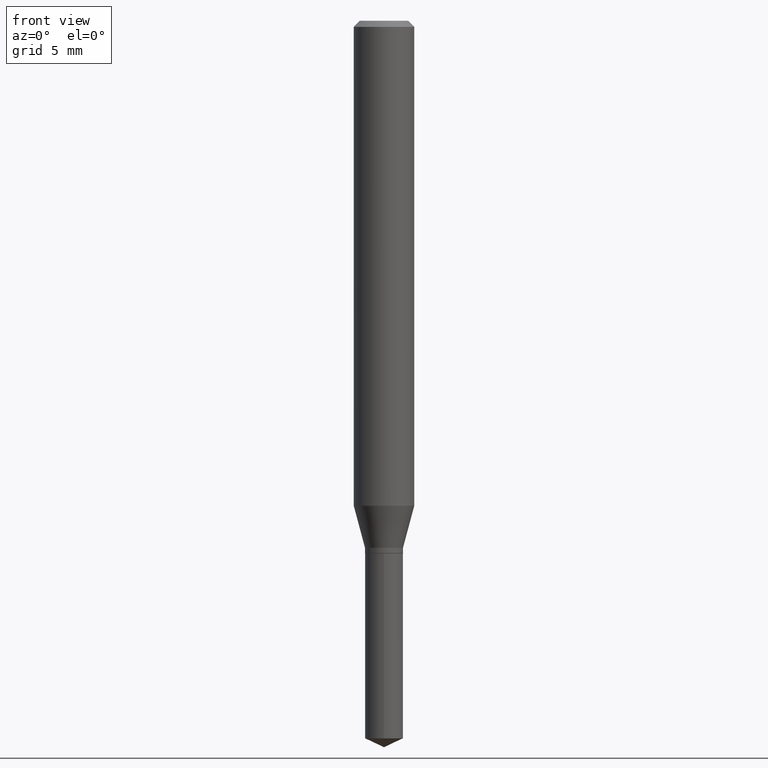
[diagram: clean part render]
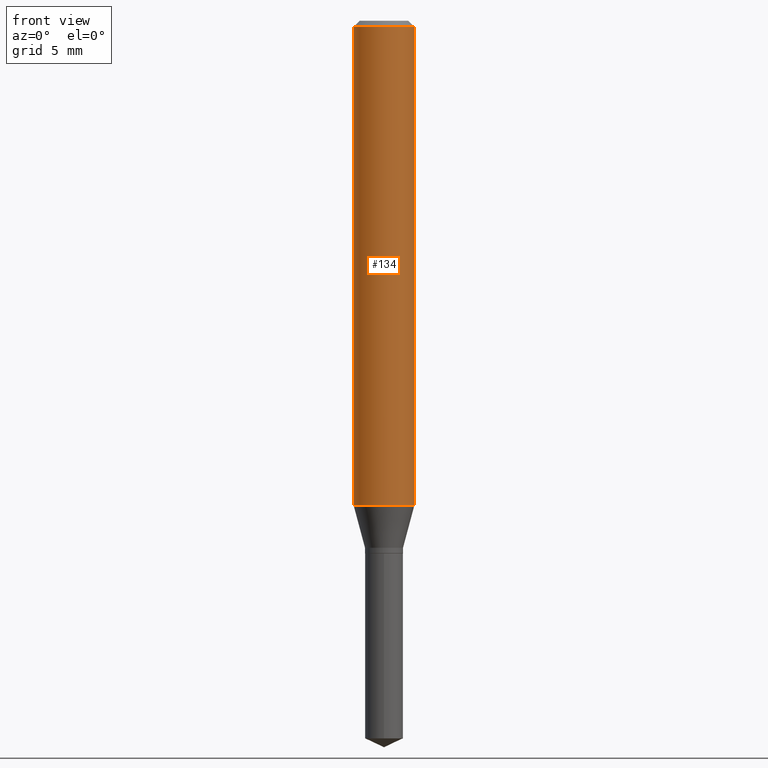
[diagram: same view with one face highlighted and labeled with its STEP entity id]
A machine part, front view. The second image highlights one B-rep face of the part: STEP entity #134.
In plain terms, the highlighted cylindrical surface (edge-blend (fillet) strip) has radius 1.5875 mm, axis along (-0, 0, 1).
Its self-contained STEP definition (entity closure, byte-faithful):
#6 = CARTESIAN_POINT ( 'NONE',  ( 2.448965383273235722E-29, -3.496473524236002365E-15, -1.001429818724023590 ) ) ;
#9 = DIRECTION ( 'NONE',  ( -2.445468806185136597E-29, 3.491481338843145583E-15, 1.000000000000000000 ) ) ;
#13 = AXIS2_PLACEMENT_3D ( 'NONE', #6, #152, #313 ) ;
#41 = DIRECTION ( 'NONE',  ( 1.000000000000000000, -6.982962677686266711E-15, 0.000000000000000000 ) ) ;
#45 = CYLINDRICAL_SURFACE ( 'NONE', #119, 0.06250000000000005551 ) ;
#77 = VERTEX_POINT ( 'NONE', #260 ) ;
#101 = EDGE_LOOP ( 'NONE', ( #375, #224, #251, #434 ) ) ;
#114 = DIRECTION ( 'NONE',  ( 1.000000000000000000, -6.982962677686267499E-15, 4.876176775795936353E-29 ) ) ;
#119 = AXIS2_PLACEMENT_3D ( 'NONE', #122, #9, #114 ) ;
#122 = CARTESIAN_POINT ( 'NONE',  ( 0.000000000000000000, 0.000000000000000000, 0.000000000000000000 ) ) ;
#127 = EDGE_CURVE ( 'NONE', #290, #406, #275, .T. ) ;
#130 = EDGE_CURVE ( 'NONE', #392, #77, #215, .T. ) ;
#134 = ADVANCED_FACE ( 'NONE', ( #200 ), #45, .T. ) ;
#146 = VECTOR ( 'NONE', #204, 39.37007874015748143 ) ;
#152 = DIRECTION ( 'NONE',  ( -2.445468806185136597E-29, 3.491481338843145583E-15, 1.000000000000000000 ) ) ;
#154 = AXIS2_PLACEMENT_3D ( 'NONE', #227, #299, #41 ) ;
#168 = LINE ( 'NONE', #462, #197 ) ;
#197 = VECTOR ( 'NONE', #345, 39.37007874015748143 ) ;
#200 = FACE_OUTER_BOUND ( 'NONE', #101, .T. ) ;
#204 = DIRECTION ( 'NONE',  ( -2.445468806185136877E-29, 3.491481338843145188E-15, 1.000000000000000000 ) ) ;
#207 = CARTESIAN_POINT ( 'NONE',  ( 0.06250000000000000000, -4.800786840909312308E-16, -0.01250000000000008049 ) ) ;
#215 = CIRCLE ( 'NONE', #13, 0.06250000000000012490 ) ;
#217 = EDGE_CURVE ( 'NONE', #77, #406, #470, .T. ) ;
#222 = EDGE_CURVE ( 'NONE', #392, #290, #168, .T. ) ;
#224 = ORIENTED_EDGE ( 'NONE', *, *, #130, .T. ) ;
#227 = CARTESIAN_POINT ( 'NONE',  ( 3.056836007731440539E-31, -4.364351673553960451E-17, -0.01250000000000008049 ) ) ;
#237 = CARTESIAN_POINT ( 'NONE',  ( -0.06250000000000000000, -1.325969310635706967E-15, -0.01250000000000008049 ) ) ;
#251 = ORIENTED_EDGE ( 'NONE', *, *, #217, .T. ) ;
#260 = CARTESIAN_POINT ( 'NONE',  ( 0.06250000000000012490, -3.932908691591394824E-15, -1.001429818724023590 ) ) ;
#275 = CIRCLE ( 'NONE', #154, 0.06250000000000000000 ) ;
#290 = VERTEX_POINT ( 'NONE', #237 ) ;
#299 = DIRECTION ( 'NONE',  ( -2.445468806185136597E-29, 3.491481338843145583E-15, 1.000000000000000000 ) ) ;
#313 = DIRECTION ( 'NONE',  ( 1.000000000000000000, -6.982962677686264344E-15, 0.000000000000000000 ) ) ;
#345 = DIRECTION ( 'NONE',  ( -2.445468806185136877E-29, 3.491481338843145188E-15, 1.000000000000000000 ) ) ;
#375 = ORIENTED_EDGE ( 'NONE', *, *, #222, .F. ) ;
#381 = CARTESIAN_POINT ( 'NONE',  ( 0.06250000000000005551, -4.364351673553921131E-16, 3.047610484872463023E-30 ) ) ;
#392 = VERTEX_POINT ( 'NONE', #401 ) ;
#401 = CARTESIAN_POINT ( 'NONE',  ( -0.06250000000000012490, -3.052384314385938566E-15, -1.001429818724023590 ) ) ;
#406 = VERTEX_POINT ( 'NONE', #207 ) ;
#434 = ORIENTED_EDGE ( 'NONE', *, *, #127, .F. ) ;
#462 = CARTESIAN_POINT ( 'NONE',  ( -0.06250000000000005551, 4.440892098500630106E-16, -3.074334431409318916E-30 ) ) ;
#470 = LINE ( 'NONE', #381, #146 ) ;